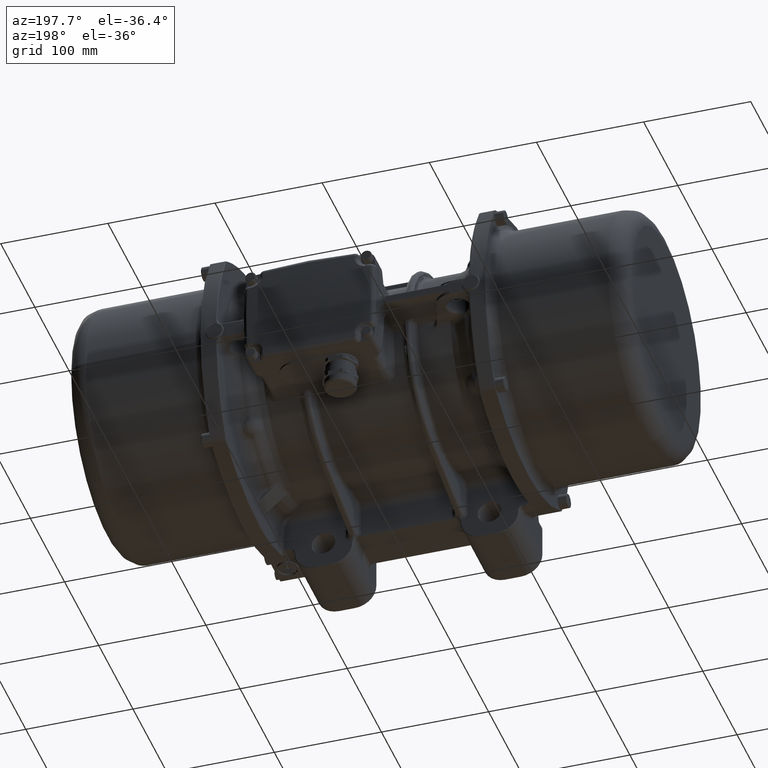
[diagram: clean part render]
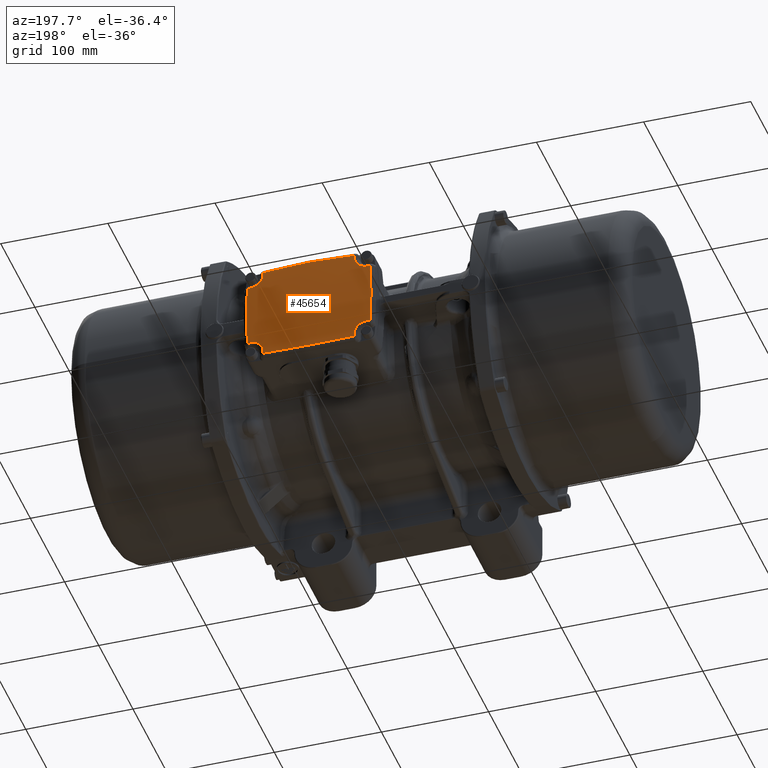
[diagram: same view with one face highlighted and labeled with its STEP entity id]
A machine part, auxiliary view. The second image highlights one B-rep face of the part: STEP entity #45654.
In plain terms, the highlighted face is a freeform B-spline surface patch.
Its self-contained STEP definition (entity closure, byte-faithful):
#686 = AXIS2_PLACEMENT_3D ( 'NONE', #31809, #115246, #105175 ) ;
#883 = CARTESIAN_POINT ( 'NONE',  ( 70.80099112611391400, 140.1579857306200800, 37.95817970119676200 ) ) ;
#1516 = VERTEX_POINT ( 'NONE', #75987 ) ;
#2219 = CARTESIAN_POINT ( 'NONE',  ( 71.71748710637584200, 140.1981535391145100, 35.89616350961637900 ) ) ;
#2271 = ORIENTED_EDGE ( 'NONE', *, *, #78094, .T. ) ;
#3117 = EDGE_CURVE ( 'NONE', #122421, #1516, #36661, .T. ) ;
#3635 = CARTESIAN_POINT ( 'NONE',  ( -23.75453696539259600, 140.0221914944224300, -30.52004903686564000 ) ) ;
#5006 = CARTESIAN_POINT ( 'NONE',  ( -15.99654455184131400, 140.1706770404083800, -37.42915580634741000 ) ) ;
#5445 = CARTESIAN_POINT ( 'NONE',  ( -18.27170948451574300, 140.2000843240203100, -33.82778227813197000 ) ) ;
#5908 = CARTESIAN_POINT ( 'NONE',  ( -15.84532354235491500, 140.1617408879179200, -37.81932783390499300 ) ) ;
#5951 = CARTESIAN_POINT ( 'NONE',  ( 74.68741151196300600, 140.1757695341506700, -32.50736086019383500 ) ) ;
#6451 = CARTESIAN_POINT ( 'NONE',  ( -15.18973269834685000, 139.8894073123183800, -44.46232171451670500 ) ) ;
#7756 = CARTESIAN_POINT ( 'NONE',  ( 70.79664817475087100, 140.1576949436162400, -37.97003769607425700 ) ) ;
#7878 = EDGE_LOOP ( 'NONE', ( #50943, #92077, #2271, #27970, #60067, #48775, #44016, #91916, #63730, #13278, #115418, #44582, #26813, #55749, #82440, #45383 ) ) ;
#7975 = B_SPLINE_CURVE_WITH_KNOTS ( 'NONE', 3,
 ( #86291, #76149, #86751, #23950, #3635, #97301, #118794, #34479, #77073, #77989, #92226, #16525, #99122, #57811, #112846, #15143, #131591, #120154, #109185, #47303, #120602, #88578, #79343, #130243, #5445, #57373, #110096, #89926, #60578, #131151, #98683, #68772, #130688, #58266, #68351, #67452, #16054, #18845, #28954, #78889, #25746, #110545, #36285, #67901, #56926, #37189, #81674, #109639, #89489, #26648, #5006, #5908, #36740, #8220, #102348, #39521, #47742, #100022, #35831, #121057, #78434, #46858, #15597, #50043, #89034 ),
 .UNSPECIFIED., .F., .F.,
 ( 4, 2, 2, 2, 2, 2, 1, 1, 2, 2, 1, 1, 1, 2, 2, 2, 2, 2, 2, 1, 1, 2, 2, 2, 2, 2, 2, 2, 2, 2, 2, 2, 2, 1, 1, 2, 4 ),
 ( 0.0000000000000000000, 0.1250000000003377600, 0.1875000000005062300, 0.2500000000006747400, 0.3750000000010120800, 0.4375000000011805000, 0.4687500000012652100, 0.4843750000013075700, 0.4853515625013096200, 0.4858398437513108400, 0.4863281250013120600, 0.4882812500013097900, 0.4921875000012994100, 0.5000000000012802000, 0.5312500000011994800, 0.5625000000011186600, 0.5703125000010987900, 0.5712890625010959000, 0.5722656250010930100, 0.5742187500010871300, 0.5781250000010759200, 0.5937500000010353900, 0.6250000000009555700, 0.6875000000007960300, 0.6953125000007761600, 0.6992187500007661600, 0.7031250000007561700, 0.7187500000007188700, 0.7500000000006440400, 0.8125000000004936100, 0.8164062500004842800, 0.8183593750004790600, 0.8203125000004739500, 0.8281250000004533000, 0.8437500000004120000, 0.8750000000003295100, 1.000000000000000000 ),
 .UNSPECIFIED. ) ;
#8220 = CARTESIAN_POINT ( 'NONE',  ( -15.68569475248725600, 140.1473633337027700, -38.33801657730982300 ) ) ;
#9160 = CARTESIAN_POINT ( 'NONE',  ( 70.48956237251502400, 140.1264104404883700, 39.04634005678933300 ) ) ;
#9444 = CARTESIAN_POINT ( 'NONE',  ( -16.35910137418551400, 140.1888433948131800, 36.56407888303817800 ) ) ;
#10003 = CARTESIAN_POINT ( 'NONE',  ( -30.58092259876671200, 140.0374845838315100, -12.48842621507754000 ) ) ;
#10103 = VERTEX_POINT ( 'NONE', #78375 ) ;
#10403 = EDGE_CURVE ( 'NONE', #1516, #67930, #36063, .T. ) ;
#10961 = CARTESIAN_POINT ( 'NONE',  ( 76.62340017611843700, 140.1147002021280100, 31.30144241308670800 ) ) ;
#13118 = EDGE_CURVE ( 'NONE', #14082, #56259, #132314, .T. ) ;
#13193 = CARTESIAN_POINT ( 'NONE',  ( 13.27712292434220800, 140.8415571655005700, 45.70361760198563400 ) ) ;
#13254 = CARTESIAN_POINT ( 'NONE',  ( -15.18973263864674900, 140.0223226999146100, 41.68482575999609500 ) ) ;
#13278 = ORIENTED_EDGE ( 'NONE', *, *, #54586, .F. ) ;
#13427 = CARTESIAN_POINT ( 'NONE',  ( 70.18970649389366700, 139.9351406099963200, -43.53659348961364400 ) ) ;
#14026 = CARTESIAN_POINT ( 'NONE',  ( 84.71513541297540000, 139.6750815051160000, -30.13360863594970200 ) ) ;
#14082 = VERTEX_POINT ( 'NONE', #117494 ) ;
#14125 = CARTESIAN_POINT ( 'NONE',  ( 70.18973738822670300, 139.8894073123749700, 44.46232206241254700 ) ) ;
#14553 = CARTESIAN_POINT ( 'NONE',  ( 7.927395520999998400, 141.4599013970001000, 46.25035180199999000 ) ) ;
#15143 = CARTESIAN_POINT ( 'NONE',  ( -18.76502914210271900, 140.1933757664070600, -33.32936531980195100 ) ) ;
#15597 = CARTESIAN_POINT ( 'NONE',  ( -15.26476875213787700, 140.0878367017011200, -40.17246545573677000 ) ) ;
#16054 = CARTESIAN_POINT ( 'NONE',  ( -17.40197655286554800, 140.2035601292946600, -34.88693763421618100 ) ) ;
#16525 = CARTESIAN_POINT ( 'NONE',  ( -19.26580543451723700, 140.1840849590081700, -32.87724604050222200 ) ) ;
#17027 = CARTESIAN_POINT ( 'NONE',  ( 70.26385594716035100, 140.0879292071024300, -40.17131439937878000 ) ) ;
#17856 = CARTESIAN_POINT ( 'NONE',  ( -29.71513072337680200, 139.6750815051149700, -30.13360863602060000 ) ) ;
#18727 = CARTESIAN_POINT ( 'NONE',  ( -24.66337622429944100, 139.9765159693098400, 30.32127404965625300 ) ) ;
#18845 = CARTESIAN_POINT ( 'NONE',  ( -17.29937658302245400, 140.2031361635182200, -35.02987035368374800 ) ) ;
#19260 = CARTESIAN_POINT ( 'NONE',  ( -30.06349899659151600, 139.8210757569630100, 25.11107446598637700 ) ) ;
#19630 = CARTESIAN_POINT ( 'NONE',  ( -25.22859663039741900, 139.9465066523091300, 30.23200669644749500 ) ) ;
#19932 = CARTESIAN_POINT ( 'NONE',  ( -15.18973263894674900, 140.0223226998959900, -41.68482541199520600 ) ) ;
#20175 = CARTESIAN_POINT ( 'NONE',  ( -30.76013367921818200, 140.1123294013594300, 0.0007008592923691944700 ) ) ;
#20633 = CARTESIAN_POINT ( 'NONE',  ( -29.96745703966620400, 139.7807989471512500, -26.36488959916997400 ) ) ;
#21777 = CARTESIAN_POINT ( 'NONE',  ( 70.18973732800120000, 140.0223227000244000, -41.68482541200110300 ) ) ;
#22435 = AXIS2_PLACEMENT_3D ( 'NONE', #133646, #37876, #48433 ) ;
#22496 = CARTESIAN_POINT ( 'NONE',  ( 70.92867073909950200, 140.1667514563356200, 37.60238226202049800 ) ) ;
#22941 = CARTESIAN_POINT ( 'NONE',  ( 79.11368689705067000, 140.0046823227405900, 30.42963142758012700 ) ) ;
#23677 = CARTESIAN_POINT ( 'NONE',  ( -0.9595869364753437700, 140.5250892191062100, -45.28991287886293500 ) ) ;
#23950 = CARTESIAN_POINT ( 'NONE',  ( -24.12057261552967100, 140.0043206471255800, -30.42858102062771100 ) ) ;
#24194 = CARTESIAN_POINT ( 'NONE',  ( 86.10775336073345400, 140.2587001380658800, 10.05579982904772700 ) ) ;
#24362 = CARTESIAN_POINT ( 'NONE',  ( 70.18970649389363800, 139.9351406099963200, 43.53659383761390000 ) ) ;
#24437 = FACE_OUTER_BOUND ( 'NONE', #7878, .T. ) ;
#25162 = CARTESIAN_POINT ( 'NONE',  ( 86.46107204099992300, 138.8776852839998800, 46.25035180199999000 ) ) ;
#25746 = CARTESIAN_POINT ( 'NONE',  ( -16.54812209235366900, 140.1919166101025700, -36.25147839915622000 ) ) ;
#26648 = CARTESIAN_POINT ( 'NONE',  ( -16.20881320570495300, 140.1805954509456500, -36.93821914882340700 ) ) ;
#26813 = ORIENTED_EDGE ( 'NONE', *, *, #87516, .F. ) ;
#27043 = EDGE_CURVE ( 'NONE', #84358, #75293, #40805, .T. ) ;
#27139 = CARTESIAN_POINT ( 'NONE',  ( 70.18973732800120000, 140.0223227000244000, -41.68482541200110300 ) ) ;
#27970 = ORIENTED_EDGE ( 'NONE', *, *, #13118, .T. ) ;
#28037 = CARTESIAN_POINT ( 'NONE',  ( 79.85240297876734400, 139.9666281791587300, -30.28823335654281500 ) ) ;
#28931 = CARTESIAN_POINT ( 'NONE',  ( -29.83134071653343600, 139.7237828143977400, -28.45817275935575800 ) ) ;
#28954 = CARTESIAN_POINT ( 'NONE',  ( -16.98848851980551100, 140.2007739978492700, -35.48620695385522300 ) ) ;
#29801 = CARTESIAN_POINT ( 'NONE',  ( -30.51489975252069400, 140.0098868593615600, -14.59903079322273800 ) ) ;
#30636 = CARTESIAN_POINT ( 'NONE',  ( -17.56135533211239900, 140.2056808297597000, 34.63320616151877800 ) ) ;
#30725 = CARTESIAN_POINT ( 'NONE',  ( -30.50093062736084800, 140.0040467281970400, -15.00799207986667100 ) ) ;
#31702 = CARTESIAN_POINT ( 'NONE',  ( 70.18973731927484000, 140.0399116926968800, 41.30500020652588200 ) ) ;
#31809 = CARTESIAN_POINT ( 'NONE',  ( 27.50000234153190000, -758.0000001465319900, -30.13360863600610200 ) ) ;
#34315 = EDGE_CURVE ( 'NONE', #88253, #127392, #99386, .T. ) ;
#34479 = CARTESIAN_POINT ( 'NONE',  ( -21.61854492156463800, 140.1148657729099500, -31.30429993068923600 ) ) ;
#34805 = CARTESIAN_POINT ( 'NONE',  ( 70.18973732802339800, 140.0223227000280100, 41.68482576000124600 ) ) ;
#35022 = CARTESIAN_POINT ( 'NONE',  ( 27.50000234153190000, -758.0000001465210700, 30.13360898400970100 ) ) ;
#35697 = CARTESIAN_POINT ( 'NONE',  ( -31.51023769099996800, 140.4600072039999600, 15.43037617399999200 ) ) ;
#35831 = CARTESIAN_POINT ( 'NONE',  ( -15.63790916290782800, 140.1427376240222300, -38.50023875240015800 ) ) ;
#35993 = B_SPLINE_CURVE_WITH_KNOTS ( 'NONE', 3,
 ( #134129, #101668, #112617, #60346 ),
 .UNSPECIFIED., .F., .F.,
 ( 4, 4 ),
 ( 0.0000000000000000000, 1.000000000000000000 ),
 .UNSPECIFIED. ) ;
#36063 = B_SPLINE_CURVE_WITH_KNOTS ( 'NONE', 3,
 ( #38963, #112725, #123254, #19630, #93482, #18727, #40296, #102238, #49928, #51288, #72309, #135125, #81103, #30636, #91669, #9444, #134239, #123698, #71439, #70973, #82010, #39406, #124604 ),
 .UNSPECIFIED., .F., .F.,
 ( 4, 1, 2, 2, 2, 2, 2, 2, 2, 2, 2, 4 ),
 ( 0.0000000000000000000, 0.06250000000000047200, 0.09375000000000055500, 0.1250000000000006400, 0.2500000000000006100, 0.3750000000000008300, 0.5000000000000010000, 0.6250000000000012200, 0.7500000000000014400, 0.8125000000000010000, 0.8750000000000005600, 1.000000000000000000 ),
 .UNSPECIFIED. ) ;
#36285 = CARTESIAN_POINT ( 'NONE',  ( -16.48513394128945500, 140.1901712742876200, -36.37126132468390700 ) ) ;
#36661 = CIRCLE ( 'NONE', #127828, 899.4965945852609400 ) ;
#36703 = CARTESIAN_POINT ( 'NONE',  ( 70.18973738822670300, 139.8894073123749700, 44.46232206241254700 ) ) ;
#36740 = CARTESIAN_POINT ( 'NONE',  ( -15.69452659978543400, 140.1481763153917100, -38.30894061026133100 ) ) ;
#37189 = CARTESIAN_POINT ( 'NONE',  ( -16.44227160415501700, 140.1888959677470700, -36.45466239204141300 ) ) ;
#37664 = CARTESIAN_POINT ( 'NONE',  ( 70.18973731053229400, 140.0575651189633400, -40.92378289591378900 ) ) ;
#37876 = DIRECTION ( 'NONE',  ( -5.202889179550710300E-020, -1.346304586320372100E-015, -1.000000000000000000 ) ) ;
#38596 = CARTESIAN_POINT ( 'NONE',  ( 71.35909289811525000, 140.1888427198739200, -36.56411027193951200 ) ) ;
#38891 = CARTESIAN_POINT ( 'NONE',  ( 47.16183519800004100, 143.0419863030001000, -15.43037582599999700 ) ) ;
#38963 = CARTESIAN_POINT ( 'NONE',  ( -26.74107176099904800, 139.8596935419842000, 30.13360898399945100 ) ) ;
#39043 = CARTESIAN_POINT ( 'NONE',  ( -26.74107176099925100, 139.8596935419871800, -30.13360863600015100 ) ) ;
#39060 = CARTESIAN_POINT ( 'NONE',  ( 79.66337752404840000, 139.9765161426222400, -30.32127437906979500 ) ) ;
#39406 = CARTESIAN_POINT ( 'NONE',  ( -15.18973262103069100, 140.0575644228816500, 40.92379827416118600 ) ) ;
#39496 = CARTESIAN_POINT ( 'NONE',  ( -30.76013207029431500, 140.1123293660616300, 0.01716524321694758200 ) ) ;
#39521 = CARTESIAN_POINT ( 'NONE',  ( -15.66812477029270700, 140.1457013547921500, -38.39682441767980900 ) ) ;
#40127 = EDGE_CURVE ( 'NONE', #67930, #123025, #35993, .T. ) ;
#40296 = CARTESIAN_POINT ( 'NONE',  ( -23.73176486382915200, 140.0241588265893400, 30.50748976545165500 ) ) ;
#40389 = CARTESIAN_POINT ( 'NONE',  ( -30.49912143179915700, 140.0032903308566300, -15.06026148168078300 ) ) ;
#40805 = CIRCLE ( 'NONE', #686, 899.4965945852720800 ) ;
#41279 = CARTESIAN_POINT ( 'NONE',  ( -30.38283236368314300, 139.9546714514258100, -18.41363757714935900 ) ) ;
#42139 = EDGE_CURVE ( 'NONE', #56259, #84358, #134401, .T. ) ;
#44016 = ORIENTED_EDGE ( 'NONE', *, *, #47037, .T. ) ;
#44399 = CARTESIAN_POINT ( 'NONE',  ( 86.10775336073345400, 140.2587001380659600, -10.05579948104521100 ) ) ;
#44582 = ORIENTED_EDGE ( 'NONE', *, *, #34315, .F. ) ;
#45383 = ORIENTED_EDGE ( 'NONE', *, *, #40127, .T. ) ;
#45654 = ADVANCED_FACE ( 'NONE', ( #24437 ), #74602, .F. ) ;
#46858 = CARTESIAN_POINT ( 'NONE',  ( -15.45091518767061700, 140.1198302757752000, -39.23881616197078200 ) ) ;
#47037 = EDGE_CURVE ( 'NONE', #75293, #10103, #129298, .T. ) ;
#47303 = CARTESIAN_POINT ( 'NONE',  ( -18.75488424631462400, 140.1935400290740000, -33.33904129331436600 ) ) ;
#47742 = CARTESIAN_POINT ( 'NONE',  ( -15.65937833714762400, 140.1448563656704200, -38.42648051783240200 ) ) ;
#48433 = DIRECTION ( 'NONE',  ( 0.0000000000000000000, -1.000000000000000000, 1.346127371154835700E-015 ) ) ;
#48775 = ORIENTED_EDGE ( 'NONE', *, *, #27043, .T. ) ;
#49451 = VERTEX_POINT ( 'NONE', #53164 ) ;
#49589 = CARTESIAN_POINT ( 'NONE',  ( 80.79375505909791900, 139.9156198203228300, -30.16172238337563600 ) ) ;
#49928 = CARTESIAN_POINT ( 'NONE',  ( -21.61930625544328100, 140.1148352180732100, 31.30385499025521100 ) ) ;
#50019 = CARTESIAN_POINT ( 'NONE',  ( -30.45507287826824300, 139.9850632489298600, 17.57747768152133400 ) ) ;
#50043 = CARTESIAN_POINT ( 'NONE',  ( -15.19035366894110300, 140.0574538859903000, -40.92554738160192300 ) ) ;
#50907 = CARTESIAN_POINT ( 'NONE',  ( -30.76117129847223800, 140.1127470062266400, -2.331821059522992900 ) ) ;
#50943 = ORIENTED_EDGE ( 'NONE', *, *, #124833, .T. ) ;
#50961 = EDGE_CURVE ( 'NONE', #10103, #49451, #73852, .T. ) ;
#51128 = CARTESIAN_POINT ( 'NONE',  ( -15.18973269834685000, 139.8894073123183800, -44.46232171451670500 ) ) ;
#51288 = CARTESIAN_POINT ( 'NONE',  ( -20.95575904694955600, 140.1384563282077000, 31.65937879506777000 ) ) ;
#51374 = CARTESIAN_POINT ( 'NONE',  ( -30.76013284588949400, 140.1123294056138500, 0.009808784890815297500 ) ) ;
#53164 = CARTESIAN_POINT ( 'NONE',  ( 70.18973739495238800, 139.8894073120811800, -44.46232171413189600 ) ) ;
#53691 = CARTESIAN_POINT ( 'NONE',  ( 81.74107644999340000, 139.8596935418899800, 30.13360898399630000 ) ) ;
#54586 = EDGE_CURVE ( 'NONE', #56054, #112058, #115880, .T. ) ;
#55749 = ORIENTED_EDGE ( 'NONE', *, *, #3117, .T. ) ;
#55773 = CARTESIAN_POINT ( 'NONE',  ( 84.71513541295230700, 139.6750815051179900, 30.13360898392795300 ) ) ;
#56054 = VERTEX_POINT ( 'NONE', #135111 ) ;
#56259 = VERTEX_POINT ( 'NONE', #55773 ) ;
#56808 = VERTEX_POINT ( 'NONE', #96379 ) ;
#56926 = CARTESIAN_POINT ( 'NONE',  ( -16.44759018296235800, 140.1890602665265800, -36.44418290853226900 ) ) ;
#57373 = CARTESIAN_POINT ( 'NONE',  ( -18.09753778699443700, 140.2018813239196500, -34.01611388773366000 ) ) ;
#57811 = CARTESIAN_POINT ( 'NONE',  ( -18.84283104415022000, 140.1921049583287700, -33.25540421384884100 ) ) ;
#58266 = CARTESIAN_POINT ( 'NONE',  ( -17.68328858336675000, 140.2036662544853700, -34.51780722329263500 ) ) ;
#59037 = CARTESIAN_POINT ( 'NONE',  ( 86.45569782699998000, 140.4635879899999200, -15.43037582599999700 ) ) ;
#59208 = CARTESIAN_POINT ( 'NONE',  ( 80.22860207372502800, 139.9465066080491100, -30.23200634844580000 ) ) ;
#59590 = CARTESIAN_POINT ( 'NONE',  ( -26.74107176099925100, 139.8596935419871800, -30.13360863600015100 ) ) ;
#59946 = CARTESIAN_POINT ( 'NONE',  ( 7.783468335000002000, 143.0407909959999700, 15.43037617400001200 ) ) ;
#60067 = ORIENTED_EDGE ( 'NONE', *, *, #42139, .T. ) ;
#60122 = CARTESIAN_POINT ( 'NONE',  ( 75.95572773642202000, 140.1384573873592400, -31.65940251282040700 ) ) ;
#60346 = CARTESIAN_POINT ( 'NONE',  ( -15.18973270602755000, 139.8894073119708100, 44.46232206195369900 ) ) ;
#60553 = CARTESIAN_POINT ( 'NONE',  ( -29.71513072337680200, 139.6750815051149700, -30.13360863602060000 ) ) ;
#60578 = CARTESIAN_POINT ( 'NONE',  ( -17.73209355879527400, 140.2035585605241300, -34.45648406899440600 ) ) ;
#61061 = CARTESIAN_POINT ( 'NONE',  ( 70.34459707090925900, 140.1005025436816100, 39.79482691865295200 ) ) ;
#61505 = CARTESIAN_POINT ( 'NONE',  ( 70.58167616294215900, 140.1378274568930600, 38.67958248659292800 ) ) ;
#61894 = CARTESIAN_POINT ( 'NONE',  ( -30.76010421522228500, 140.1123223516175400, 0.1373207513355198300 ) ) ;
#63247 = EDGE_CURVE ( 'NONE', #56808, #94023, #99862, .T. ) ;
#63730 = ORIENTED_EDGE ( 'NONE', *, *, #97795, .F. ) ;
#65988 = CARTESIAN_POINT ( 'NONE',  ( 41.72288176465789900, 140.8415569698055700, 45.70362146122671000 ) ) ;
#66995 = CARTESIAN_POINT ( 'NONE',  ( 81.74107644999820400, 139.8596935419701900, -30.13360863599905000 ) ) ;
#67452 = CARTESIAN_POINT ( 'NONE',  ( -17.55314557938599400, 140.2037721111142600, -34.68523804926275000 ) ) ;
#67901 = CARTESIAN_POINT ( 'NONE',  ( -16.47259546431238800, 140.1898067714433600, -36.39547381580460700 ) ) ;
#67930 = VERTEX_POINT ( 'NONE', #13254 ) ;
#68351 = CARTESIAN_POINT ( 'NONE',  ( -17.61556520437245200, 140.2037719593287200, -34.60384362398153300 ) ) ;
#68772 = CARTESIAN_POINT ( 'NONE',  ( -17.71086030695946800, 140.2036091666981000, -34.48308261849075500 ) ) ;
#68817 = CARTESIAN_POINT ( 'NONE',  ( 71.71471429976936900, 140.1981401828052200, -35.89989603293237500 ) ) ;
#70625 = CARTESIAN_POINT ( 'NONE',  ( 70.92391610946143000, 140.1664681767082900, -37.61469520754620500 ) ) ;
#70973 = CARTESIAN_POINT ( 'NONE',  ( -15.48623696872320100, 140.1261726374591200, 39.05547744384407600 ) ) ;
#71058 = CARTESIAN_POINT ( 'NONE',  ( -30.74081858911233000, 140.1044001558677500, 4.394285482845441800 ) ) ;
#71439 = CARTESIAN_POINT ( 'NONE',  ( -15.57768300884656100, 140.1375263771034300, 38.69103878003751600 ) ) ;
#71524 = CARTESIAN_POINT ( 'NONE',  ( -30.69738686375659500, 140.0861396546928300, -7.578294833092940100 ) ) ;
#72309 = CARTESIAN_POINT ( 'NONE',  ( -19.68737082156449200, 140.1757705933776800, 32.50738527394641900 ) ) ;
#72397 = CARTESIAN_POINT ( 'NONE',  ( -30.62088372134055800, 140.0541842579438000, -11.04229378482865800 ) ) ;
#72850 = CARTESIAN_POINT ( 'NONE',  ( -30.71915810464547600, 140.0952241165671800, -6.098523545980550700 ) ) ;
#73832 = CARTESIAN_POINT ( 'NONE',  ( 80.98060702864935900, 139.9056346600572700, 30.13360898399811900 ) ) ;
#73852 = B_SPLINE_CURVE_WITH_KNOTS ( 'NONE', 3,
 ( #21777, #116190, #13427, #77182 ),
 .UNSPECIFIED., .F., .F.,
 ( 4, 4 ),
 ( 0.0000000000000000000, 1.000000000000000000 ),
 .UNSPECIFIED. ) ;
#73930 = CARTESIAN_POINT ( 'NONE',  ( -29.71513072362705200, 139.6750815053623900, 30.13360897674540300 ) ) ;
#74270 = CARTESIAN_POINT ( 'NONE',  ( 78.02888890290927300, 140.0558416958811300, 30.73962137468648600 ) ) ;
#74602 =( BOUNDED_SURFACE ( )  B_SPLINE_SURFACE ( 3, 3, ( 
 ( #129659, #14553, #88002, #25162 ),
 ( #35697, #59946, #110876, #121367 ),
 ( #80127, #122286, #38891, #59037 ),
 ( #79212, #100795, #91605, #121825 ) ),
 .UNSPECIFIED., .F., .F., .F. ) 
 B_SPLINE_SURFACE_WITH_KNOTS ( ( 4, 4 ),
 ( 4, 4 ),
 ( 0.4871136094752260300, 0.5128863905247750300 ),
 ( 0.0000000000000000000, 1.000000000000000000 ),
 .UNSPECIFIED. ) 
 GEOMETRIC_REPRESENTATION_ITEM ( )  RATIONAL_B_SPLINE_SURFACE ( (
 ( 0.5015191598161620200, 0.5008010030315379600, 0.5008010030315379600, 0.5015191598161620200),
 ( 0.5010773876544070100, 0.5003598634710889600, 0.5003598634710889600, 0.5010773876544070100),
 ( 0.5010773876544070100, 0.5003598634710889600, 0.5003598634710889600, 0.5010773876544070100),
 ( 0.5015191598161620200, 0.5008010030315379600, 0.5008010030315379600, 0.5015191598161620200) ) ) 
 REPRESENTATION_ITEM ( '' )  SURFACE ( )  );
#75293 = VERTEX_POINT ( 'NONE', #66995 ) ;
#75431 = EDGE_CURVE ( 'NONE', #127392, #56054, #7975, .T. ) ;
#75624 = CARTESIAN_POINT ( 'NONE',  ( 80.22869029227663900, 139.9476207928914600, 30.20761563251501900 ) ) ;
#75987 = CARTESIAN_POINT ( 'NONE',  ( -26.74107176099904800, 139.8596935419842000, 30.13360898399945100 ) ) ;
#76149 = CARTESIAN_POINT ( 'NONE',  ( -25.97821085243095500, 139.9057791338409800, -30.13360863600808400 ) ) ;
#76521 = B_SPLINE_CURVE_WITH_KNOTS ( 'NONE', 3,
 ( #82558, #19260, #50019, #93106, #71058, #123347, #103656, #134332, #82101, #61894, #114157, #113688, #39496, #51374, #92200, #20175, #135215, #50907, #72850, #71524, #135661, #72397, #10003, #112813, #92655, #29801, #93568, #102773, #30725, #102321, #104101, #40389, #41279, #83466, #20633, #28931, #60553 ),
 .UNSPECIFIED., .F., .F.,
 ( 4, 1, 1, 1, 1, 1, 1, 1, 1, 1, 1, 1, 2, 2, 2, 2, 2, 1, 1, 1, 1, 1, 1, 2, 2, 2, 4 ),
 ( 0.0000000000000000000, 0.2500000000000026100, 0.3750000000000040500, 0.4375000000000047200, 0.4687500000000051100, 0.4843750000000052700, 0.4921875000000053800, 0.4960937500000053800, 0.4980468750000054400, 0.4990234375000054400, 0.4995117187500054400, 0.4997558593750054400, 0.4998779296875054400, 0.5000000000000054400, 0.6250000000000069900, 0.6875000000000077700, 0.7187500000000082200, 0.7343750000000083300, 0.7421875000000084400, 0.7460937500000084400, 0.7480468750000084400, 0.7490234375000084400, 0.7495117187500084400, 0.7497558593750084400, 0.7500000000000085500, 0.8750000000000042200, 1.000000000000000000 ),
 .UNSPECIFIED. ) ;
#77073 = CARTESIAN_POINT ( 'NONE',  ( -20.95491608456410400, 140.1384963358622100, -31.65935149883015100 ) ) ;
#77182 = CARTESIAN_POINT ( 'NONE',  ( 70.18973739495238800, 139.8894073120811800, -44.46232171413189600 ) ) ;
#77989 = CARTESIAN_POINT ( 'NONE',  ( -20.01285252911522500, 140.1662380660703800, -32.28865758528503700 ) ) ;
#78094 = EDGE_CURVE ( 'NONE', #94023, #14082, #83701, .T. ) ;
#78375 = CARTESIAN_POINT ( 'NONE',  ( 70.18973732800120000, 140.0223227000244000, -41.68482541200110300 ) ) ;
#78434 = CARTESIAN_POINT ( 'NONE',  ( -15.51380797729372500, 140.1289610276193700, -38.95961355222839700 ) ) ;
#78889 = CARTESIAN_POINT ( 'NONE',  ( -16.77677093385911900, 140.1977192073044900, -35.82816287557815100 ) ) ;
#79212 = CARTESIAN_POINT ( 'NONE',  ( -31.29757783199994100, 138.8884181800000900, -46.25035145400002500 ) ) ;
#79307 = CARTESIAN_POINT ( 'NONE',  ( -27.73252667700000300, 139.7997982379999900, -30.13360863600000200 ) ) ;
#79343 = CARTESIAN_POINT ( 'NONE',  ( -18.64750876778016000, 140.1952207784991900, -33.44274700667612200 ) ) ;
#79842 = CARTESIAN_POINT ( 'NONE',  ( 78.73178311418901400, 140.0241581330122900, -30.50748670777855800 ) ) ;
#80127 = CARTESIAN_POINT ( 'NONE',  ( -31.51023769099996800, 140.4600072039999600, -15.43037582599999700 ) ) ;
#81103 = CARTESIAN_POINT ( 'NONE',  ( -18.03834897012406600, 140.2037971372807300, 34.05174480245320000 ) ) ;
#81674 = CARTESIAN_POINT ( 'NONE',  ( -16.40487356434826800, 140.1877386309032300, -36.52839560075494100 ) ) ;
#82010 = CARTESIAN_POINT ( 'NONE',  ( -15.26384822321421600, 140.0879286936597900, 40.17132978018047100 ) ) ;
#82101 = CARTESIAN_POINT ( 'NONE',  ( -30.76003766710599800, 140.1122997784309800, 0.2746413826231499100 ) ) ;
#82440 = ORIENTED_EDGE ( 'NONE', *, *, #10403, .T. ) ;
#82558 = CARTESIAN_POINT ( 'NONE',  ( -29.71513072362705200, 139.6750815053623900, 30.13360897674540300 ) ) ;
#82770 = CARTESIAN_POINT ( 'NONE',  ( -15.18973266000000100, 139.9794460260000100, -42.61072587100000000 ) ) ;
#83466 = CARTESIAN_POINT ( 'NONE',  ( -30.24320502349035800, 139.8962443578996900, -21.34262204219473000 ) ) ;
#83701 = B_SPLINE_CURVE_WITH_KNOTS ( 'NONE', 3,
 ( #135732, #31702, #124312, #105078, #61061, #124756, #9160, #61505, #883, #22496, #127467, #2219, #84419, #116462, #85771, #94975, #96313, #10961, #95858, #74270, #127011, #22941, #75624, #73832, #53691 ),
 .UNSPECIFIED., .F., .F.,
 ( 4, 1, 2, 2, 2, 2, 2, 2, 2, 2, 2, 2, 4 ),
 ( 0.0000000000000000000, 0.06249999999999955600, 0.09374999999999925100, 0.1249999999999989500, 0.1874999999999994400, 0.2499999999999999400, 0.3750000000000007200, 0.5000000000000015500, 0.6250000000000023300, 0.7500000000000031100, 0.8125000000000023300, 0.8750000000000015500, 1.000000000000000000 ),
 .UNSPECIFIED. ) ;
#84358 = VERTEX_POINT ( 'NONE', #112063 ) ;
#84419 = CARTESIAN_POINT ( 'NONE',  ( 72.56604802506004100, 140.2056499817451800, 34.62791871980319800 ) ) ;
#85264 = CARTESIAN_POINT ( 'NONE',  ( -15.18973270602755000, 139.8894073119708100, 44.46232206195369900 ) ) ;
#85771 = CARTESIAN_POINT ( 'NONE',  ( 74.11119004753139400, 140.1886850824079700, 32.97932896254278000 ) ) ;
#86291 = CARTESIAN_POINT ( 'NONE',  ( -26.74107176099925100, 139.8596935419871800, -30.13360863600015100 ) ) ;
#86640 = CARTESIAN_POINT ( 'NONE',  ( 55.95984622627014500, 140.5250778460822100, 45.28989841991128200 ) ) ;
#86751 = CARTESIAN_POINT ( 'NONE',  ( -25.22785822108989600, 139.9476361634491200, -30.20847175901141700 ) ) ;
#87516 = EDGE_CURVE ( 'NONE', #122421, #88253, #76521, .T. ) ;
#87880 = CARTESIAN_POINT ( 'NONE',  ( 70.18973739495238800, 139.8894073120811800, -44.46232171413189600 ) ) ;
#88002 = CARTESIAN_POINT ( 'NONE',  ( 47.23656808500002300, 141.4563186350001400, 46.25035180199999000 ) ) ;
#88253 = VERTEX_POINT ( 'NONE', #135056 ) ;
#88578 = CARTESIAN_POINT ( 'NONE',  ( -18.72178742065496900, 140.1940671611023100, -33.37080799369036300 ) ) ;
#89034 = CARTESIAN_POINT ( 'NONE',  ( -15.18973263894674900, 140.0223226998959900, -41.68482541199520600 ) ) ;
#89489 = CARTESIAN_POINT ( 'NONE',  ( -16.27725260189774700, 140.1833118733793800, -36.79033873779354700 ) ) ;
#89926 = CARTESIAN_POINT ( 'NONE',  ( -17.79262756312315500, 140.2033961096952900, -34.38104673396374300 ) ) ;
#89976 = CARTESIAN_POINT ( 'NONE',  ( 78.00873156828095000, 140.0576304195820400, -30.72736070728741000 ) ) ;
#91605 = CARTESIAN_POINT ( 'NONE',  ( 47.23656808500002300, 141.4563186350001400, -46.25035145399999700 ) ) ;
#91669 = CARTESIAN_POINT ( 'NONE',  ( -16.71468328921650200, 140.1981399490017300, 35.89993574408413200 ) ) ;
#91916 = ORIENTED_EDGE ( 'NONE', *, *, #50961, .T. ) ;
#92077 = ORIENTED_EDGE ( 'NONE', *, *, #63247, .T. ) ;
#92200 = CARTESIAN_POINT ( 'NONE',  ( -30.76013332162806800, 140.1123294146532000, 0.004904479400260179000 ) ) ;
#92226 = CARTESIAN_POINT ( 'NONE',  ( -19.70549472127779100, 140.1742414392795100, -32.51659864713092000 ) ) ;
#92655 = CARTESIAN_POINT ( 'NONE',  ( -30.53026920430366400, 140.0163121109120300, -14.13739381303359900 ) ) ;
#93106 = CARTESIAN_POINT ( 'NONE',  ( -30.68355715354496000, 140.0805562884688100, 8.788626511512967800 ) ) ;
#93482 = CARTESIAN_POINT ( 'NONE',  ( -24.85239805519061200, 139.9666281927974900, 30.28823370454548000 ) ) ;
#93568 = CARTESIAN_POINT ( 'NONE',  ( -30.50697760283035700, 140.0065748456068800, -14.83214822241447100 ) ) ;
#94023 = VERTEX_POINT ( 'NONE', #34805 ) ;
#94975 = CARTESIAN_POINT ( 'NONE',  ( 74.69289464449734300, 140.1756553674442500, 32.50251184900784600 ) ) ;
#95702 = B_SPLINE_CURVE_WITH_KNOTS ( 'NONE', 3,
 ( #85264, #109065, #13193, #65988, #86640, #14125 ),
 .UNSPECIFIED., .F., .F.,
 ( 4, 2, 4 ),
 ( 0.0000000000000000000, 0.5000000000000001100, 1.000000000000000000 ),
 .UNSPECIFIED. ) ;
#95858 = CARTESIAN_POINT ( 'NONE',  ( 77.67369089469274000, 140.0714075949723600, 30.86674037895715000 ) ) ;
#96313 = CARTESIAN_POINT ( 'NONE',  ( 75.95934194281807100, 140.1383563292210700, 31.65669833017450300 ) ) ;
#96379 = CARTESIAN_POINT ( 'NONE',  ( 70.18973738822670300, 139.8894073123749700, 44.46232206241254700 ) ) ;
#96578 = CARTESIAN_POINT ( 'NONE',  ( 41.73067937871417100, 140.8415237038334700, -45.70427141114006300 ) ) ;
#97037 = CARTESIAN_POINT ( 'NONE',  ( 13.26932531028585200, 140.8415902273552500, -45.70296628177609900 ) ) ;
#97301 = CARTESIAN_POINT ( 'NONE',  ( -23.02868045100630600, 140.0558395261437600, -30.74005282484038300 ) ) ;
#97739 = CARTESIAN_POINT ( 'NONE',  ( 70.18970647155642000, 139.9794459508797800, 42.61075953379662500 ) ) ;
#97795 = EDGE_CURVE ( 'NONE', #112058, #49451, #112406, .T. ) ;
#98027 = CARTESIAN_POINT ( 'NONE',  ( 84.71513541295230700, 139.6750815051179900, 30.13360898392795300 ) ) ;
#98683 = CARTESIAN_POINT ( 'NONE',  ( -17.71179525801500200, 140.2036073850240400, -34.48190177898478500 ) ) ;
#99122 = CARTESIAN_POINT ( 'NONE',  ( -19.05204655097061600, 140.1884555283427000, -33.06151691281822700 ) ) ;
#99386 = B_SPLINE_CURVE_WITH_KNOTS ( 'NONE', 3,
 ( #17856, #133368, #79307, #59590 ),
 .UNSPECIFIED., .F., .F.,
 ( 4, 4 ),
 ( 0.0000000000000000000, 1.000000000000000000 ),
 .UNSPECIFIED. ) ;
#99862 = B_SPLINE_CURVE_WITH_KNOTS ( 'NONE', 3,
 ( #36703, #24362, #97739, #110056 ),
 .UNSPECIFIED., .F., .F.,
 ( 4, 4 ),
 ( 0.0000000000000000000, 1.000000000000000000 ),
 .UNSPECIFIED. ) ;
#100022 = CARTESIAN_POINT ( 'NONE',  ( -15.65447735948978900, 140.1443761512802800, -38.44324348774896500 ) ) ;
#100516 = CARTESIAN_POINT ( 'NONE',  ( 81.74107644999820400, 139.8596935419701900, -30.13360863599905000 ) ) ;
#100795 = CARTESIAN_POINT ( 'NONE',  ( 7.927395520999998400, 141.4599013970001000, -46.25035145399999700 ) ) ;
#101429 = CARTESIAN_POINT ( 'NONE',  ( 72.56133369981317600, 140.2056805960262400, -34.63324517667732000 ) ) ;
#101668 = CARTESIAN_POINT ( 'NONE',  ( -15.18989951975009900, 139.9794365508525400, 42.61075953379183500 ) ) ;
#102238 = CARTESIAN_POINT ( 'NONE',  ( -23.00875601655646800, 140.0576292199238300, 30.72734896674377600 ) ) ;
#102321 = CARTESIAN_POINT ( 'NONE',  ( -30.50005919426889600, 140.0036823956239700, -15.03318447274615400 ) ) ;
#102348 = CARTESIAN_POINT ( 'NONE',  ( -15.67250934310937200, 140.1461198302667700, -38.38206839029068400 ) ) ;
#102773 = CARTESIAN_POINT ( 'NONE',  ( -30.50295637748964900, 140.0048936585955900, -14.94928167162653100 ) ) ;
#103656 = CARTESIAN_POINT ( 'NONE',  ( -30.75886073895579600, 140.1118382438790500, 1.098566304176838100 ) ) ;
#104101 = CARTESIAN_POINT ( 'NONE',  ( -30.49947751446657300, 140.0034392039856600, -15.04998624340958100 ) ) ;
#104773 = CARTESIAN_POINT ( 'NONE',  ( -15.18973268299999900, 139.9351408960000100, -43.53655797100000100 ) ) ;
#105078 = CARTESIAN_POINT ( 'NONE',  ( 70.28828278964555000, 140.0864651700090900, 40.17133240857598500 ) ) ;
#105175 = DIRECTION ( 'NONE',  ( -1.000000000000000000, 6.235539694280158500E-013, 0.0000000000000000000 ) ) ;
#108381 = DIRECTION ( 'NONE',  ( 1.000000000000000000, 9.343435369299560900E-013, 0.0000000000000000000 ) ) ;
#108485 = CARTESIAN_POINT ( 'NONE',  ( -15.18973269834685000, 139.8894073123183800, -44.46232171451670500 ) ) ;
#109065 = CARTESIAN_POINT ( 'NONE',  ( -0.9599079023541297100, 140.5250748813165300, 45.28989456026920400 ) ) ;
#109185 = CARTESIAN_POINT ( 'NONE',  ( -18.76009958517054700, 140.1934557282904200, -33.33406359210377400 ) ) ;
#109639 = CARTESIAN_POINT ( 'NONE',  ( -16.37373646935082800, 140.1867160465949400, -36.59106188939650700 ) ) ;
#110056 = CARTESIAN_POINT ( 'NONE',  ( 70.18973732802339800, 140.0223227000280100, 41.68482576000124600 ) ) ;
#110096 = CARTESIAN_POINT ( 'NONE',  ( -17.84488510894901800, 140.2031846177980600, -34.31746260690840000 ) ) ;
#110545 = CARTESIAN_POINT ( 'NONE',  ( -16.52285021326988400, 140.1912390659445000, -36.29904722481536100 ) ) ;
#110876 = CARTESIAN_POINT ( 'NONE',  ( 47.16183519800004100, 143.0419863030001000, 15.43037617400001200 ) ) ;
#112058 = VERTEX_POINT ( 'NONE', #6451 ) ;
#112063 = CARTESIAN_POINT ( 'NONE',  ( 84.71513541297540000, 139.6750815051160000, -30.13360863594970200 ) ) ;
#112377 = CARTESIAN_POINT ( 'NONE',  ( 76.61934008371247300, 140.1148340183007100, -31.30384255371122000 ) ) ;
#112406 = B_SPLINE_CURVE_WITH_KNOTS ( 'NONE', 3,
 ( #108485, #23677, #97037, #96578, #117630, #87880 ),
 .UNSPECIFIED., .F., .F.,
 ( 4, 2, 4 ),
 ( 0.0000000000000000000, 0.5000000000000000000, 1.000000000000000000 ),
 .UNSPECIFIED. ) ;
#112617 = CARTESIAN_POINT ( 'NONE',  ( -15.18989954193456200, 139.9351312085780400, 43.53659383760792400 ) ) ;
#112725 = CARTESIAN_POINT ( 'NONE',  ( -26.36146139587323800, 139.8826263833574900, 30.13360898399814400 ) ) ;
#112813 = CARTESIAN_POINT ( 'NONE',  ( -30.55915903994163300, 140.0283886090053000, -13.23251137533941900 ) ) ;
#112846 = CARTESIAN_POINT ( 'NONE',  ( -18.77133222976783600, 140.1932731942456800, -33.32336516842863700 ) ) ;
#113688 = CARTESIAN_POINT ( 'NONE',  ( -30.76012982666017600, 140.1123290918193300, 0.03433031327667792500 ) ) ;
#114157 = CARTESIAN_POINT ( 'NONE',  ( -30.76012360373734500, 140.1123278155173500, 0.06866045592467832900 ) ) ;
#115246 = DIRECTION ( 'NONE',  ( -0.0000000000000000000, -0.0000000000000000000, 1.000000000000000000 ) ) ;
#115418 = ORIENTED_EDGE ( 'NONE', *, *, #75431, .F. ) ;
#115880 = B_SPLINE_CURVE_WITH_KNOTS ( 'NONE', 3,
 ( #19932, #82770, #104773, #51128 ),
 .UNSPECIFIED., .F., .F.,
 ( 4, 4 ),
 ( 0.0000000000000000000, 1.000000000000000000 ),
 .UNSPECIFIED. ) ;
#116190 = CARTESIAN_POINT ( 'NONE',  ( 70.18970647155649100, 139.9794459508797800, -42.61075918579629700 ) ) ;
#116462 = CARTESIAN_POINT ( 'NONE',  ( 73.04396905948083000, 140.2037533188283500, 34.04537340246334100 ) ) ;
#117494 = CARTESIAN_POINT ( 'NONE',  ( 81.74107644999340000, 139.8596935418899800, 30.13360898399630000 ) ) ;
#117630 = CARTESIAN_POINT ( 'NONE',  ( 55.96066049081962000, 140.5249769439670300, -45.29115691392239300 ) ) ;
#118794 = CARTESIAN_POINT ( 'NONE',  ( -22.66793334502984100, 140.0716450122190800, -30.86918508495619300 ) ) ;
#118898 = DIRECTION ( 'NONE',  ( -0.0000000000000000000, -0.0000000000000000000, -1.000000000000000000 ) ) ;
#120154 = CARTESIAN_POINT ( 'NONE',  ( -18.76184959680315200, 140.1934273616192000, -33.33239521395792300 ) ) ;
#120602 = CARTESIAN_POINT ( 'NONE',  ( -18.74021829441595300, 140.1937754898401600, -33.35307592464801700 ) ) ;
#121057 = CARTESIAN_POINT ( 'NONE',  ( -15.59895581060297900, 140.1387397991587400, -38.63738125844498200 ) ) ;
#121095 = CARTESIAN_POINT ( 'NONE',  ( 70.57769415185427400, 140.1375270905782600, -38.69101463175068300 ) ) ;
#121367 = CARTESIAN_POINT ( 'NONE',  ( 86.45569782699998000, 140.4635879899999200, 15.43037617399999200 ) ) ;
#121825 = CARTESIAN_POINT ( 'NONE',  ( 86.46107204099992300, 138.8776852839998800, -46.25035145400002500 ) ) ;
#122286 = CARTESIAN_POINT ( 'NONE',  ( 7.783468335000002000, 143.0407909959999700, -15.43037582599999700 ) ) ;
#122421 = VERTEX_POINT ( 'NONE', #73930 ) ;
#122456 = CARTESIAN_POINT ( 'NONE',  ( 73.03839356630072600, 140.2037965762790700, -34.05170454040311500 ) ) ;
#122907 = CARTESIAN_POINT ( 'NONE',  ( 81.36146736198001900, 139.8826263061797000, -30.13360863599813700 ) ) ;
#123025 = VERTEX_POINT ( 'NONE', #124056 ) ;
#123254 = CARTESIAN_POINT ( 'NONE',  ( -25.79374873063351000, 139.9156199172558100, 30.16172273137610900 ) ) ;
#123347 = CARTESIAN_POINT ( 'NONE',  ( -30.75521753465741200, 140.1103531455160000, 2.197135893959269600 ) ) ;
#123698 = CARTESIAN_POINT ( 'NONE',  ( -15.79663531205063800, 140.1576943336437500, 37.97006184558167500 ) ) ;
#124056 = CARTESIAN_POINT ( 'NONE',  ( -15.18973270602755000, 139.8894073119708100, 44.46232206195369900 ) ) ;
#124312 = CARTESIAN_POINT ( 'NONE',  ( 70.21789133131918000, 140.0645194881200800, 40.73692107283994100 ) ) ;
#124604 = CARTESIAN_POINT ( 'NONE',  ( -15.18973263864674900, 140.0223226999146100, 41.68482575999609500 ) ) ;
#124756 = CARTESIAN_POINT ( 'NONE',  ( 70.37770618714246500, 140.1072690247850100, 39.60555789505912800 ) ) ;
#124833 = EDGE_CURVE ( 'NONE', #123025, #56808, #95702, .T. ) ;
#127011 = CARTESIAN_POINT ( 'NONE',  ( 78.74947864965174900, 140.0224487764598100, 30.52094907291106200 ) ) ;
#127392 = VERTEX_POINT ( 'NONE', #39043 ) ;
#127467 = CARTESIAN_POINT ( 'NONE',  ( 71.36146982179197100, 140.1888856636429900, 36.56007700544575600 ) ) ;
#127828 = AXIS2_PLACEMENT_3D ( 'NONE', #35022, #118898, #108381 ) ;
#129298 = B_SPLINE_CURVE_WITH_KNOTS ( 'NONE', 3,
 ( #100516, #122907, #49589, #59208, #28037, #39060, #79842, #89976, #112377, #60122, #5951, #133445, #122456, #101429, #68817, #38596, #70625, #7756, #121095, #132995, #17027, #37664, #27139 ),
 .UNSPECIFIED., .F., .F.,
 ( 4, 1, 2, 2, 2, 2, 2, 2, 2, 2, 2, 4 ),
 ( 0.0000000000000000000, 0.06250000000000018000, 0.09375000000000038900, 0.1250000000000005800, 0.2500000000000005600, 0.3750000000000005600, 0.5000000000000005600, 0.6250000000000005600, 0.7500000000000005600, 0.8125000000000005600, 0.8750000000000005600, 1.000000000000000000 ),
 .UNSPECIFIED. ) ;
#129659 = CARTESIAN_POINT ( 'NONE',  ( -31.29757783199994100, 138.8884181800000900, 46.25035180199999000 ) ) ;
#130243 = CARTESIAN_POINT ( 'NONE',  ( -18.54669106944513500, 140.1967544459142500, -33.54109535445442000 ) ) ;
#130688 = CARTESIAN_POINT ( 'NONE',  ( -17.70167877583480700, 140.2036291029259600, -34.49462615454653000 ) ) ;
#131151 = CARTESIAN_POINT ( 'NONE',  ( -17.72534335332962400, 140.2035755601936000, -34.46492025247669500 ) ) ;
#131591 = CARTESIAN_POINT ( 'NONE',  ( -18.76252912252038000, 140.1934163402908100, -33.33174754543626500 ) ) ;
#132314 = CIRCLE ( 'NONE', #22435, 899.4965945852810600 ) ;
#132995 = CARTESIAN_POINT ( 'NONE',  ( 70.48624014147125600, 140.1261723807887200, -39.05548461224465500 ) ) ;
#133368 = CARTESIAN_POINT ( 'NONE',  ( -28.72387966399999800, 139.7382608920000000, -30.13360863600000200 ) ) ;
#133445 = CARTESIAN_POINT ( 'NONE',  ( 74.10486688673070400, 140.1888094303321000, -32.98489111761730900 ) ) ;
#133646 = CARTESIAN_POINT ( 'NONE',  ( 27.50000234153190000, -758.0000001465409700, 30.13360898399915300 ) ) ;
#134129 = CARTESIAN_POINT ( 'NONE',  ( -15.18973263864674900, 140.0223226999146100, 41.68482575999609500 ) ) ;
#134239 = CARTESIAN_POINT ( 'NONE',  ( -15.92390483717402600, 140.1664678391897500, 37.61471142399715000 ) ) ;
#134332 = CARTESIAN_POINT ( 'NONE',  ( -30.75979348325942900, 140.1122080488693800, 0.5492828071142542600 ) ) ;
#134401 = B_SPLINE_CURVE_WITH_KNOTS ( 'NONE', 3,
 ( #98027, #24194, #44399, #14026 ),
 .UNSPECIFIED., .F., .F.,
 ( 4, 4 ),
 ( 0.0000000000000000000, 1.000000000000000000 ),
 .UNSPECIFIED. ) ;
#135056 = CARTESIAN_POINT ( 'NONE',  ( -29.71513072337680200, 139.6750815051149700, -30.13360863602060000 ) ) ;
#135111 = CARTESIAN_POINT ( 'NONE',  ( -15.18973263894674900, 140.0223226998959900, -41.68482541199520600 ) ) ;
#135125 = CARTESIAN_POINT ( 'NONE',  ( -19.10490210390715800, 140.1888088693287400, 32.98485155156760800 ) ) ;
#135215 = CARTESIAN_POINT ( 'NONE',  ( -30.76019124443275400, 140.1123256497200800, -0.7175015653878513700 ) ) ;
#135661 = CARTESIAN_POINT ( 'NONE',  ( -30.64277801906271400, 140.0633311201172000, -10.13425602107771300 ) ) ;
#135732 = CARTESIAN_POINT ( 'NONE',  ( 70.18973732802339800, 140.0223227000280100, 41.68482576000124600 ) ) ;